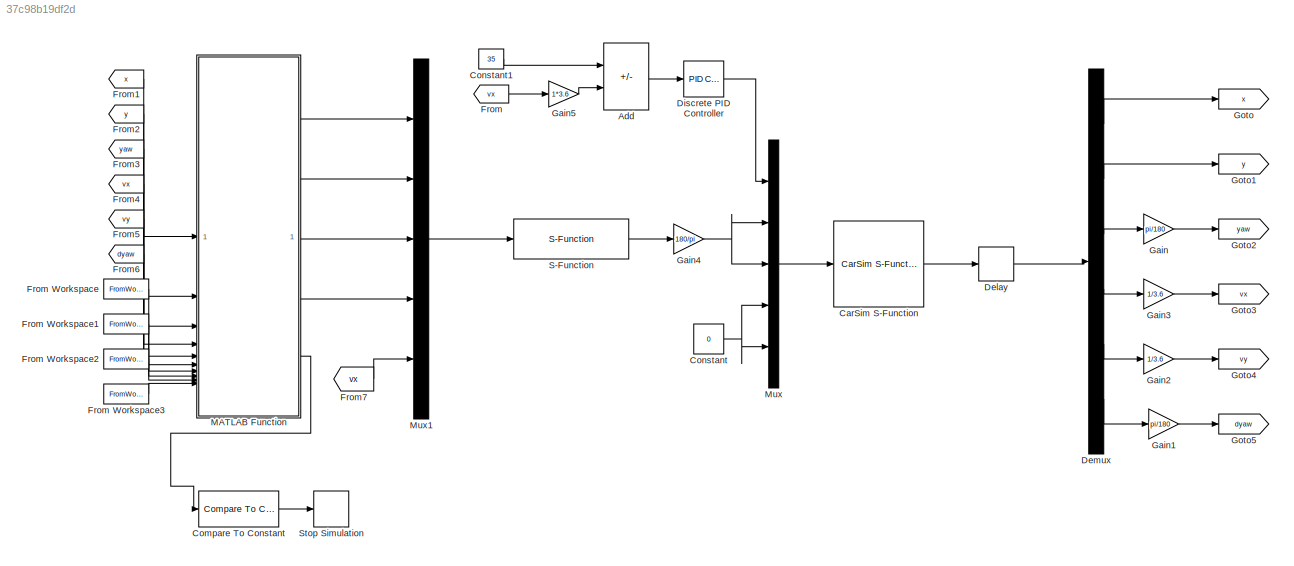
MODEL slx_37c98b19df2d
KIND model
CONFIG AbsTol = auto
CONFIG EnableMultiTasking = off
CONFIG FixedStep = auto
CONFIG MaxStep = auto
CONFIG MinStep = auto
CONFIG RelTol = 1e-3
CONFIG SampleTimeConstraint = Unconstrained
CONFIG SolverName = VariableStepAuto
CONFIG StartTime = 0.0
CONFIG StopTime = 50
BLOCK [Sum] Add
  IconShape = rectangular
  Inputs = +-
BLOCK [Reference] CarSim S-Function  REF=Solver_SF/CarSim S-Function
  Priority = 1
  SourceBlock = Solver_SF/CarSim S-Function
  SourceProductName = CarSim S-Function
  SourceType = Vehicle math model library
BLOCK [Reference] Compare To Constant  REF=simulink/Logic and Bit
Operations/Compare
To Constant
  SourceBlock = simulink/Logic and Bit\nOperations/Compare\nTo Constant
  SourceType = Compare To Constant
BLOCK [Constant] Constant
  Value = 0
BLOCK [Constant] Constant1
  Value = 35
BLOCK [Delay] Delay
  DelayLength = 1
  InputPortMap = u0
BLOCK [Demux] Demux
  Outputs = 6
BLOCK [Reference] Discrete PID Controller  REF=slpidlib/PID Controller
  LibrarySourceBlock = simulink/Discrete/Discrete PID Controller
  SourceBlock = slpidlib/PID Controller
  SourceType = PID 1dof
BLOCK [From] From
  GotoTag = vx
BLOCK [FromWorkspace] From Workspace
  VariableName = cx
BLOCK [FromWorkspace] From Workspace1
  VariableName = cy
BLOCK [FromWorkspace] From Workspace2
  VariableName = r_yaw
BLOCK [FromWorkspace] From Workspace3
  VariableName = r_k
BLOCK [From] From1
  GotoTag = x
BLOCK [From] From2
  GotoTag = y
BLOCK [From] From3
  GotoTag = yaw
BLOCK [From] From4
  GotoTag = vx
BLOCK [From] From5
  GotoTag = vy
BLOCK [From] From6
  GotoTag = dyaw
BLOCK [From] From7
  GotoTag = vx
BLOCK [Gain] Gain
  Gain = pi/180
BLOCK [Gain] Gain1
  Gain = pi/180
BLOCK [Gain] Gain2
  Gain = 1/3.6
BLOCK [Gain] Gain3
  Gain = 1/3.6
BLOCK [Gain] Gain4
  Gain = 180/pi
BLOCK [Gain] Gain5
  Gain = 1*3.6
BLOCK [Goto] Goto
  GotoTag = x
BLOCK [Goto] Goto1
  GotoTag = y
BLOCK [Goto] Goto2
  GotoTag = yaw
BLOCK [Goto] Goto3
  GotoTag = vx
BLOCK [Goto] Goto4
  GotoTag = vy
BLOCK [Goto] Goto5
  GotoTag = dyaw
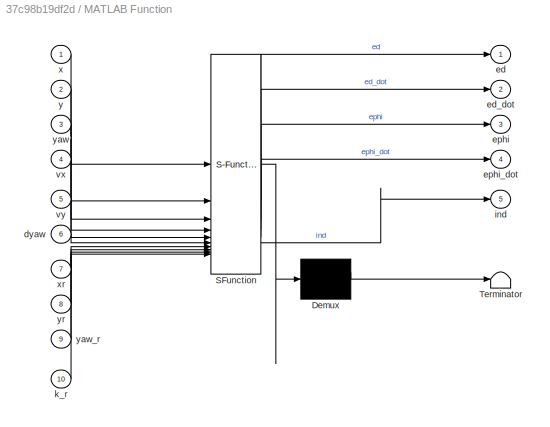
BLOCK [SubSystem] MATLAB Function
  ErrorFcn = Stateflow.Translate.translate
  LibrarySourceBlock = simulink/User-Defined\nFunctions/MATLAB Function
  PermitHierarchicalResolution = ExplicitOnly
  SFBlockType = MATLAB Function
  TreatAsAtomicUnit = on
BLOCK [Demux] MATLAB Function/ Demux 
  Outputs = 1
BLOCK [S-Function] MATLAB Function/ SFunction 
  EnableBusSupport = on
  FunctionName = sf_sfun
  PortCounts = [10 6]
  SFcnIsStateOwnerBlock = off
  SFunctionDeploymentMode = off
  Tag = Stateflow S-Function 2
BLOCK [Terminator] MATLAB Function/ Terminator 
BLOCK [Inport] MATLAB Function/dyaw
  Port = 6
BLOCK [Outport] MATLAB Function/ed
BLOCK [Outport] MATLAB Function/ed_dot
  Port = 2
BLOCK [Outport] MATLAB Function/ephi
  Port = 3
BLOCK [Outport] MATLAB Function/ephi_dot
  Port = 4
BLOCK [Outport] MATLAB Function/ind
  Port = 5
BLOCK [Inport] MATLAB Function/k_r
  Port = 10
BLOCK [Inport] MATLAB Function/vx
  Port = 4
BLOCK [Inport] MATLAB Function/vy
  Port = 5
BLOCK [Inport] MATLAB Function/x
BLOCK [Inport] MATLAB Function/xr
  Port = 7
BLOCK [Inport] MATLAB Function/y
  Port = 2
BLOCK [Inport] MATLAB Function/yaw
  Port = 3
BLOCK [Inport] MATLAB Function/yaw_r
  Port = 9
BLOCK [Inport] MATLAB Function/yr
  Port = 8
BLOCK [Mux] Mux
  DisplayOption = bar
  Inputs = 5
BLOCK [Mux] Mux1
  DisplayOption = bar
  Inputs = 5
BLOCK [S-Function] S-Function
  EnableBusSupport = off
  FunctionName = MY_MPCController
  SFcnIsStateOwnerBlock = off
  SFunctionDeploymentMode = off
BLOCK [Stop] Stop Simulation
LINE Add:1 -> Discrete PID Controller:1
LINE CarSim S-Function:1 -> Delay:1
LINE Compare To Constant:1 -> Stop Simulation:1
LINE Constant1:1 -> Add:1
NET Constant:1 -> Mux:4, Mux:5
LINE Delay:1 -> Demux:1
LINE Demux:1 -> Goto:1
LINE Demux:2 -> Goto1:1
LINE Demux:3 -> Gain:1
LINE Demux:4 -> Gain3:1
LINE Demux:5 -> Gain2:1
LINE Demux:6 -> Gain1:1
LINE Discrete PID Controller:1 -> Mux:1
LINE From Workspace1:1 -> MATLAB Function:8
LINE From Workspace2:1 -> MATLAB Function:9
LINE From Workspace3:1 -> MATLAB Function:10
LINE From Workspace:1 -> MATLAB Function:7
LINE From1:1 -> MATLAB Function:1
LINE From2:1 -> MATLAB Function:2
LINE From3:1 -> MATLAB Function:3
LINE From4:1 -> MATLAB Function:4
LINE From5:1 -> MATLAB Function:5
LINE From6:1 -> MATLAB Function:6
LINE From7:1 -> Mux1:5
LINE From:1 -> Gain5:1
LINE Gain1:1 -> Goto5:1
LINE Gain2:1 -> Goto4:1
LINE Gain3:1 -> Goto3:1
NET Gain4:1 -> Mux:2, Mux:3
LINE Gain5:1 -> Add:2
LINE Gain:1 -> Goto2:1
LINE MATLAB Function:1 -> Mux1:1
LINE MATLAB Function:2 -> Mux1:2
LINE MATLAB Function:3 -> Mux1:3
LINE MATLAB Function:4 -> Mux1:4
LINE MATLAB Function:5 -> Compare To Constant:1
LINE Mux1:1 -> S-Function:1
LINE Mux:1 -> CarSim S-Function:1
LINE S-Function:1 -> Gain4:1
note: NET lines group one-source signal fan-out (src -> all destinations, sorted); 1:1 wires keep LINE
CHART MATLAB Function states=1 transitions=1
  STATE_LABEL 'eML_blk_kernel()'
  STATE_LABEL 'SCRIPT:\nfunction [ed,ed_dot,ephi,ephi_dot,ind] = fcn(x,y,yaw, vx,vy,dyaw,xr,yr,yaw_r,k_r)\n%1.寻找匹配点（车辆离期望路径最近的点）   \n    n=length(xr);\n    d_min=(x-xr(1))^2+(y-yr(1))^2;\n    min=1;\n    for i=1:n\n        d=(x-xr(i))^2+(y-yr(i))^2;\n        if d<d_min\n            d_min=d;\n            min=i;\n        end\n    end\n    ind=min;\n%2.计算4个误差状态[ed,d_ed,eyaw,d_eyaw]\n    tor=[cos(yaw_r(ind));sin(yaw_r(ind))];\n    ...<+448ch>'
CHART  states=0 transitions=0
